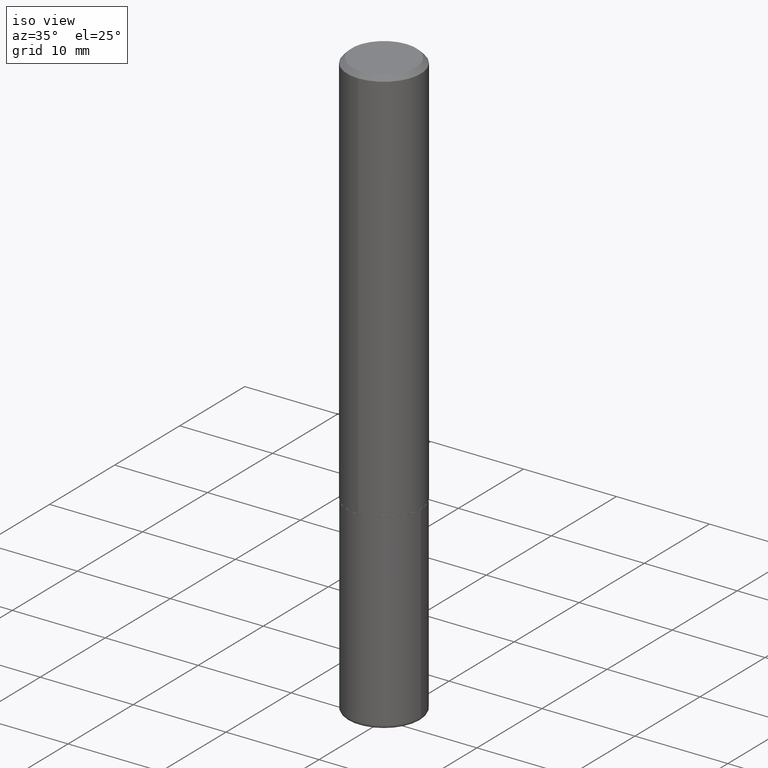
[diagram: clean part render]
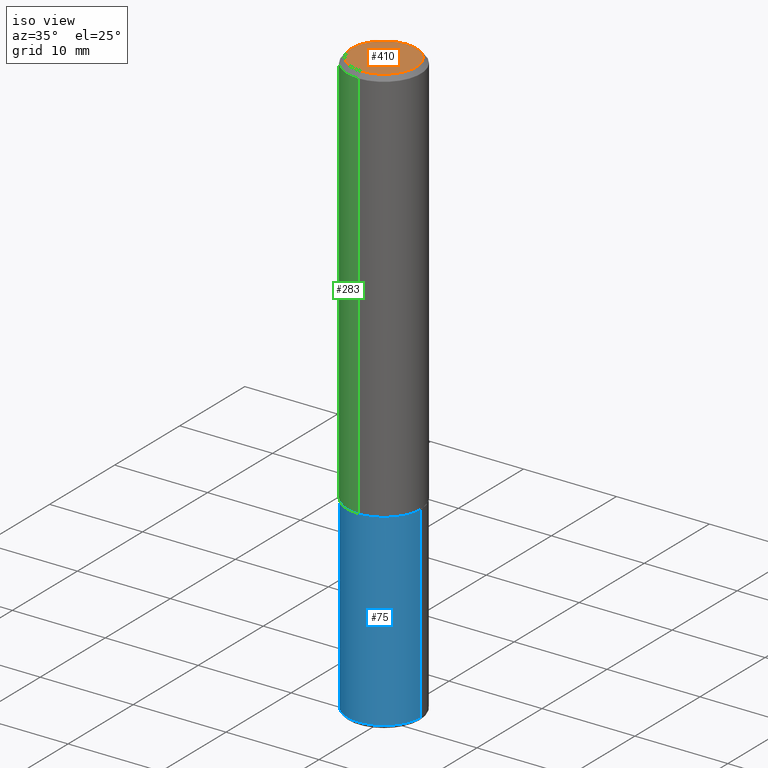
[diagram: same view with three faces highlighted in distinct colors, each labeled with its STEP entity id]
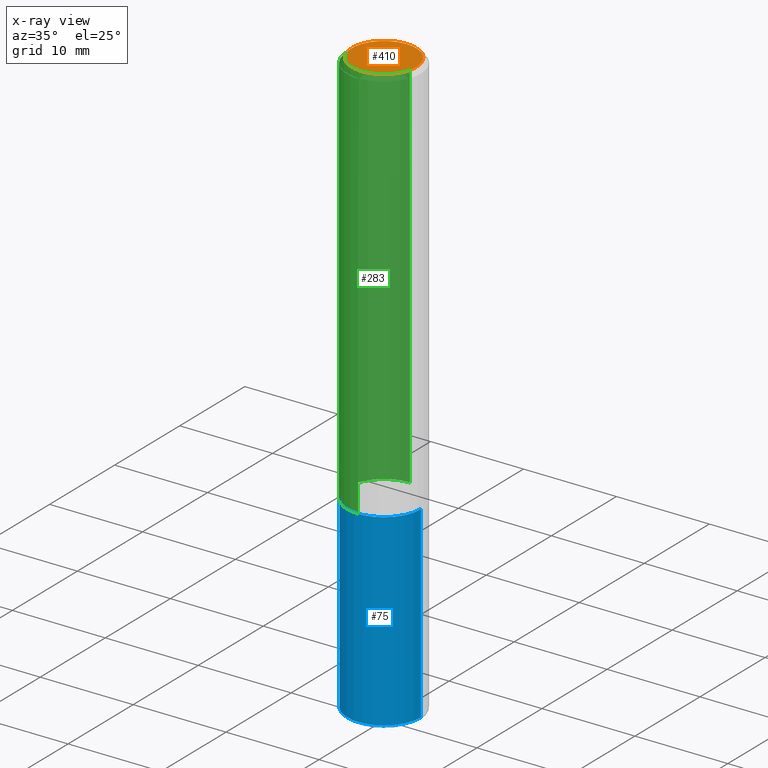
[diagram: x-ray of the same camera — body ghosted, the three highlighted faces saturated]
A machine part, iso view with three faces highlighted in distinct colors.
The next image is the same camera in x-ray (body ghosted, the three faces saturated) — at least one of them is partly hidden behind the body in this view.
Their STEP definitions:

[orange] entity #410 — the highlighted planar face has unit normal (0, -0, -1).
#12 = FACE_OUTER_BOUND ( 'NONE', #338, .T. ) ;
#13 = ORIENTED_EDGE ( 'NONE', *, *, #394, .T. ) ;
#19 = VERTEX_POINT ( 'NONE', #306 ) ;
#24 = CIRCLE ( 'NONE', #30, 0.1362500000000000933 ) ;
#30 = AXIS2_PLACEMENT_3D ( 'NONE', #76, #173, #363 ) ;
#46 = VERTEX_POINT ( 'NONE', #174 ) ;
#76 = CARTESIAN_POINT ( 'NONE',  ( 1.250383974604437494E-45, -1.785836401521438243E-31, -5.113950281278734949E-17 ) ) ;
#112 = DIRECTION ( 'NONE',  ( 6.982962677686265922E-15, 1.000000000000000000, -3.492087922831532098E-15 ) ) ;
#118 = DIRECTION ( 'NONE',  ( -6.982962677686265922E-15, -1.000000000000000000, 3.492087922831531704E-15 ) ) ;
#130 = ORIENTED_EDGE ( 'NONE', *, *, #417, .T. ) ;
#173 = DIRECTION ( 'NONE',  ( -2.445045230849958565E-29, 3.492087922831531704E-15, 1.000000000000000000 ) ) ;
#174 = CARTESIAN_POINT ( 'NONE',  ( -1.003347832174086278E-15, -0.1362500000000000933, 4.246574766730091504E-16 ) ) ;
#179 = PLANE ( 'NONE',  #304 ) ;
#238 = DIRECTION ( 'NONE',  ( 2.445045230849957724E-29, -3.492087922831532098E-15, -1.000000000000000000 ) ) ;
#269 = CARTESIAN_POINT ( 'NONE',  ( 9.514286648347543521E-16, 0.1362500000000000933, -5.013667308921901438E-16 ) ) ;
#275 = DIRECTION ( 'NONE',  ( -2.445045230849958565E-29, 3.492087922831531704E-15, 1.000000000000000000 ) ) ;
#276 = CARTESIAN_POINT ( 'NONE',  ( 1.250383974604437494E-45, -1.785836401521438243E-31, -5.113950281278734949E-17 ) ) ;
#304 = AXIS2_PLACEMENT_3D ( 'NONE', #269, #238, #112 ) ;
#306 = CARTESIAN_POINT ( 'NONE',  ( 1.021258291611616861E-15, 0.1362500000000000933, -5.269364822985837754E-16 ) ) ;
#338 = EDGE_LOOP ( 'NONE', ( #130, #13 ) ) ;
#363 = DIRECTION ( 'NONE',  ( -6.982962677686265922E-15, -1.000000000000000000, 3.492087922831531704E-15 ) ) ;
#385 = AXIS2_PLACEMENT_3D ( 'NONE', #276, #275, #118 ) ;
#392 = CIRCLE ( 'NONE', #385, 0.1362500000000000933 ) ;
#394 = EDGE_CURVE ( 'NONE', #46, #19, #392, .T. ) ;
#410 = ADVANCED_FACE ( 'NONE', ( #12 ), #179, .F. ) ;
#417 = EDGE_CURVE ( 'NONE', #19, #46, #24, .T. ) ;

[blue] entity #75 — the highlighted cylindrical surface (partial cylindrical patch) has radius 3.9688 mm, axis along (-0, 0, 1).
#6 = LINE ( 'NONE', #144, #221 ) ;
#14 = CARTESIAN_POINT ( 'NONE',  ( -0.1562500000000000000, -6.174752788871067364E-15, -1.688000000000000167 ) ) ;
#16 = DIRECTION ( 'NONE',  ( 1.000000000000000000, -6.982962677686266711E-15, 4.876176775795936353E-29 ) ) ;
#29 = DIRECTION ( 'NONE',  ( -2.445468806185136877E-29, 3.491481338843145188E-15, 1.000000000000000000 ) ) ;
#51 = DIRECTION ( 'NONE',  ( -2.445468806185136597E-29, 3.491481338843145583E-15, 1.000000000000000000 ) ) ;
#57 = DIRECTION ( 'NONE',  ( -2.445468806185136597E-29, 3.491481338843145583E-15, 1.000000000000000000 ) ) ;
#63 = LINE ( 'NONE', #315, #247 ) ;
#73 = AXIS2_PLACEMENT_3D ( 'NONE', #334, #51, #16 ) ;
#75 = ADVANCED_FACE ( 'NONE', ( #370 ), #110, .T. ) ;
#80 = CIRCLE ( 'NONE', #344, 0.1562500000000000000 ) ;
#105 = EDGE_CURVE ( 'NONE', #416, #319, #397, .T. ) ;
#110 = CYLINDRICAL_SURFACE ( 'NONE', #73, 0.1562500000000000000 ) ;
#117 = EDGE_CURVE ( 'NONE', #372, #280, #80, .T. ) ;
#119 = ORIENTED_EDGE ( 'NONE', *, *, #172, .F. ) ;
#126 = CARTESIAN_POINT ( 'NONE',  ( 4.127951344840510809E-29, -5.893620499967230340E-15, -1.688000000000000167 ) ) ;
#127 = ORIENTED_EDGE ( 'NONE', *, *, #105, .T. ) ;
#144 = CARTESIAN_POINT ( 'NONE',  ( 0.1562500000000000000, -1.091087918388479174E-15, 7.619026212181150377E-30 ) ) ;
#172 = EDGE_CURVE ( 'NONE', #416, #372, #63, .T. ) ;
#177 = CARTESIAN_POINT ( 'NONE',  ( -0.1562499999999999167, -7.566108102400061717E-15, -2.484999999999999876 ) ) ;
#204 = CARTESIAN_POINT ( 'NONE',  ( 0.1562499999999999167, -9.767419045413696643E-15, -2.484999999999999876 ) ) ;
#221 = VECTOR ( 'NONE', #361, 39.37007874015748143 ) ;
#234 = AXIS2_PLACEMENT_3D ( 'NONE', #254, #308, #415 ) ;
#247 = VECTOR ( 'NONE', #29, 39.37007874015748143 ) ;
#254 = CARTESIAN_POINT ( 'NONE',  ( 6.076989983370064174E-29, -8.676331127025216680E-15, -2.484999999999999876 ) ) ;
#255 = ORIENTED_EDGE ( 'NONE', *, *, #325, .T. ) ;
#280 = VERTEX_POINT ( 'NONE', #327 ) ;
#289 = ORIENTED_EDGE ( 'NONE', *, *, #117, .F. ) ;
#308 = DIRECTION ( 'NONE',  ( -2.445468806185136597E-29, 3.491481338843145583E-15, 1.000000000000000000 ) ) ;
#315 = CARTESIAN_POINT ( 'NONE',  ( -0.1562500000000000000, 1.110223024625156540E-15, -7.685836078523291160E-30 ) ) ;
#319 = VERTEX_POINT ( 'NONE', #204 ) ;
#325 = EDGE_CURVE ( 'NONE', #319, #280, #6, .T. ) ;
#327 = CARTESIAN_POINT ( 'NONE',  ( 0.1562500000000000000, -6.984708418355709513E-15, -1.688000000000000167 ) ) ;
#330 = EDGE_LOOP ( 'NONE', ( #119, #127, #255, #289 ) ) ;
#334 = CARTESIAN_POINT ( 'NONE',  ( 0.000000000000000000, 0.000000000000000000, 0.000000000000000000 ) ) ;
#344 = AXIS2_PLACEMENT_3D ( 'NONE', #126, #57, #388 ) ;
#361 = DIRECTION ( 'NONE',  ( -2.445468806185136877E-29, 3.491481338843145188E-15, 1.000000000000000000 ) ) ;
#370 = FACE_OUTER_BOUND ( 'NONE', #330, .T. ) ;
#372 = VERTEX_POINT ( 'NONE', #14 ) ;
#388 = DIRECTION ( 'NONE',  ( 1.000000000000000000, -6.982962677686269077E-15, 0.000000000000000000 ) ) ;
#397 = CIRCLE ( 'NONE', #234, 0.1562499999999999722 ) ;
#415 = DIRECTION ( 'NONE',  ( 1.000000000000000000, -6.982962677686270655E-15, 0.000000000000000000 ) ) ;
#416 = VERTEX_POINT ( 'NONE', #177 ) ;

[green] entity #283 — the highlighted cylindrical surface (partial cylindrical patch) has radius 3.9688 mm, axis along (-0, 0, 1).
#38 = CARTESIAN_POINT ( 'NONE',  ( 4.890090461699924977E-31, -6.984175845663074797E-17, -0.02000000000000003511 ) ) ;
#49 = ORIENTED_EDGE ( 'NONE', *, *, #321, .F. ) ;
#53 = VECTOR ( 'NONE', #380, 39.37007874015748143 ) ;
#61 = VERTEX_POINT ( 'NONE', #270 ) ;
#64 = VERTEX_POINT ( 'NONE', #84 ) ;
#84 = CARTESIAN_POINT ( 'NONE',  ( 1.110223024625178234E-15, 0.1562499999999943101, -1.687000000000000499 ) ) ;
#89 = CARTESIAN_POINT ( 'NONE',  ( -1.071952812151801215E-15, -0.1562500000000000833, -0.01999999999999948694 ) ) ;
#104 = DIRECTION ( 'NONE',  ( -6.982962677686265922E-15, -1.000000000000000000, 3.492087922831532098E-15 ) ) ;
#109 = DIRECTION ( 'NONE',  ( -2.445045230849958565E-29, 3.492087922831531704E-15, 1.000000000000000000 ) ) ;
#122 = LINE ( 'NONE', #310, #53 ) ;
#128 = EDGE_CURVE ( 'NONE', #64, #245, #383, .T. ) ;
#133 = AXIS2_PLACEMENT_3D ( 'NONE', #38, #168, #293 ) ;
#143 = EDGE_CURVE ( 'NONE', #61, #184, #122, .T. ) ;
#148 = CARTESIAN_POINT ( 'NONE',  ( 4.124791304443880664E-29, -5.891152325816794336E-15, -1.687000000000000055 ) ) ;
#153 = DIRECTION ( 'NONE',  ( -6.982962677686265922E-15, -1.000000000000000000, 3.496765431890251792E-15 ) ) ;
#163 = ORIENTED_EDGE ( 'NONE', *, *, #352, .T. ) ;
#168 = DIRECTION ( 'NONE',  ( -2.445045230849958565E-29, 3.492087922831531704E-15, 1.000000000000000000 ) ) ;
#184 = VERTEX_POINT ( 'NONE', #89 ) ;
#191 = VECTOR ( 'NONE', #217, 39.37007874015748143 ) ;
#197 = CIRCLE ( 'NONE', #133, 0.1562500000000000000 ) ;
#214 = AXIS2_PLACEMENT_3D ( 'NONE', #148, #109, #153 ) ;
#217 = DIRECTION ( 'NONE',  ( -2.445045230849958565E-29, 3.492087922831532098E-15, 1.000000000000000000 ) ) ;
#231 = DIRECTION ( 'NONE',  ( -2.445045230849958565E-29, 3.492087922831531704E-15, 1.000000000000000000 ) ) ;
#236 = CYLINDRICAL_SURFACE ( 'NONE', #297, 0.1562500000000001110 ) ;
#243 = ORIENTED_EDGE ( 'NONE', *, *, #143, .T. ) ;
#245 = VERTEX_POINT ( 'NONE', #267 ) ;
#267 = CARTESIAN_POINT ( 'NONE',  ( 1.091087918388479568E-15, 0.1562499999999999445, -0.02000000000000057981 ) ) ;
#270 = CARTESIAN_POINT ( 'NONE',  ( -1.091087918388439336E-15, -0.1562500000000061062, -1.686999999999999611 ) ) ;
#283 = ADVANCED_FACE ( 'NONE', ( #355 ), #236, .T. ) ;
#293 = DIRECTION ( 'NONE',  ( -6.982962677686265133E-15, -1.000000000000000000, 3.496765431890256920E-15 ) ) ;
#296 = CIRCLE ( 'NONE', #214, 0.1562500000000002220 ) ;
#297 = AXIS2_PLACEMENT_3D ( 'NONE', #316, #231, #104 ) ;
#310 = CARTESIAN_POINT ( 'NONE',  ( -1.091087918388479765E-15, -0.1562500000000001110, 5.456387379424272725E-16 ) ) ;
#316 = CARTESIAN_POINT ( 'NONE',  ( 0.000000000000000000, 0.000000000000000000, 0.000000000000000000 ) ) ;
#321 = EDGE_CURVE ( 'NONE', #245, #184, #197, .T. ) ;
#343 = EDGE_LOOP ( 'NONE', ( #368, #163, #243, #49 ) ) ;
#350 = CARTESIAN_POINT ( 'NONE',  ( 1.110223024625157132E-15, 0.1562500000000001110, -5.456387379424272725E-16 ) ) ;
#352 = EDGE_CURVE ( 'NONE', #64, #61, #296, .T. ) ;
#355 = FACE_OUTER_BOUND ( 'NONE', #343, .T. ) ;
#368 = ORIENTED_EDGE ( 'NONE', *, *, #128, .F. ) ;
#380 = DIRECTION ( 'NONE',  ( -2.445045230849958565E-29, 3.492087922831532098E-15, 1.000000000000000000 ) ) ;
#383 = LINE ( 'NONE', #350, #191 ) ;